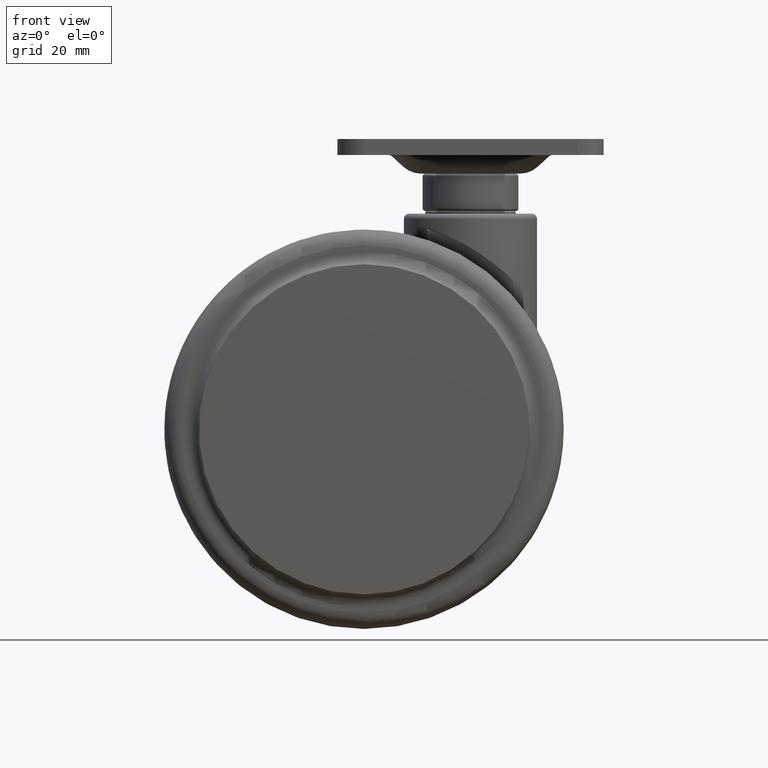
[diagram: clean part render]
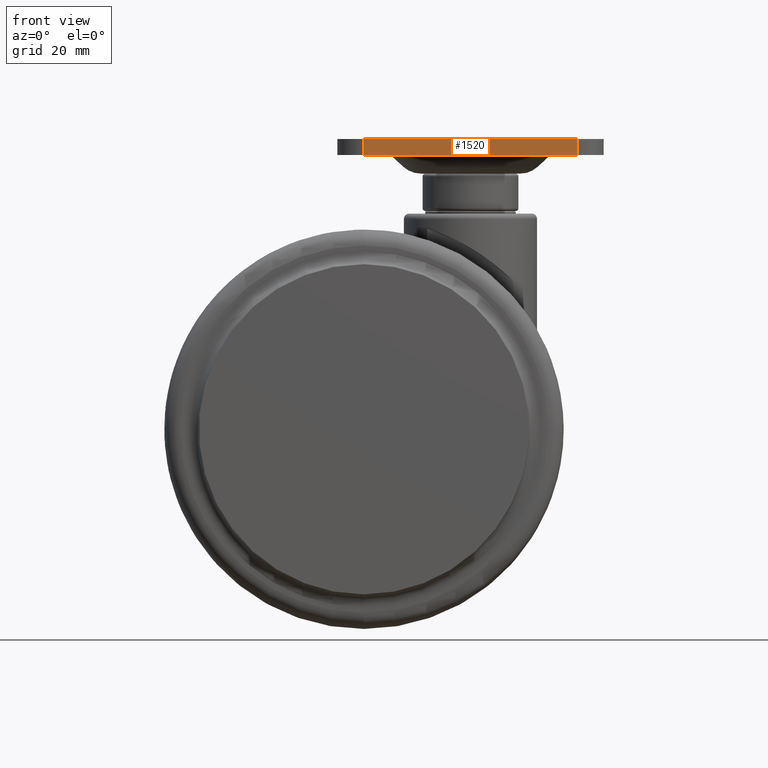
[diagram: same view with one face highlighted and labeled with its STEP entity id]
A machine part, front view. The second image highlights one B-rep face of the part: STEP entity #1520.
In plain terms, the highlighted planar face has unit normal (0, 1, 0).
Its self-contained STEP definition (entity closure, byte-faithful):
#48 = FACE_OUTER_BOUND ( 'NONE', #909, .T. ) ;
#183 = DIRECTION ( 'NONE',  ( 1.000000000000000000, -0.0000000000000000000, -0.0000000000000000000 ) ) ;
#212 = ORIENTED_EDGE ( 'NONE', *, *, #1273, .F. ) ;
#433 = CARTESIAN_POINT ( 'NONE',  ( -19.99999999999849700, -30.00000000000000000, 14.00000000000000000 ) ) ;
#484 = CARTESIAN_POINT ( 'NONE',  ( -20.00000000000000000, -30.00000000000000000, 1010.999999999999900 ) ) ;
#494 = CARTESIAN_POINT ( 'NONE',  ( 20.00000000000000000, -30.00000000000000000, 11.00000000000011900 ) ) ;
#909 = EDGE_LOOP ( 'NONE', ( #4176, #212, #2466, #2304 ) ) ;
#924 = LINE ( 'NONE', #1469, #2597 ) ;
#959 = EDGE_CURVE ( 'NONE', #1671, #1396, #1289, .T. ) ;
#1022 = DIRECTION ( 'NONE',  ( 1.000000000000000000, -0.0000000000000000000, -0.0000000000000000000 ) ) ;
#1273 = EDGE_CURVE ( 'NONE', #1396, #1315, #924, .T. ) ;
#1289 = LINE ( 'NONE', #2188, #3841 ) ;
#1315 = VERTEX_POINT ( 'NONE', #494 ) ;
#1396 = VERTEX_POINT ( 'NONE', #2398 ) ;
#1451 = VECTOR ( 'NONE', #2185, 1000.000000000000000 ) ;
#1469 = CARTESIAN_POINT ( 'NONE',  ( 20.00000000000000000, -30.00000000000000000, 1010.999999999999900 ) ) ;
#1488 = CARTESIAN_POINT ( 'NONE',  ( -19.99999999999849700, -30.00000000000000000, 11.00000000000011900 ) ) ;
#1490 = DIRECTION ( 'NONE',  ( 0.0000000000000000000, 1.000000000000000000, 0.0000000000000000000 ) ) ;
#1520 = ADVANCED_FACE ( 'NONE', ( #48 ), #1812, .F. ) ;
#1571 = LINE ( 'NONE', #1850, #1451 ) ;
#1671 = VERTEX_POINT ( 'NONE', #433 ) ;
#1791 = EDGE_CURVE ( 'NONE', #4005, #1315, #2975, .T. ) ;
#1805 = DIRECTION ( 'NONE',  ( 0.0000000000000000000, 0.0000000000000000000, -1.000000000000000000 ) ) ;
#1812 = PLANE ( 'NONE',  #3471 ) ;
#1850 = CARTESIAN_POINT ( 'NONE',  ( -19.99999999999849700, -30.00000000000000000, 1010.999999999999900 ) ) ;
#2073 = VECTOR ( 'NONE', #1022, 1000.000000000000000 ) ;
#2185 = DIRECTION ( 'NONE',  ( 0.0000000000000000000, 0.0000000000000000000, -1.000000000000000000 ) ) ;
#2188 = CARTESIAN_POINT ( 'NONE',  ( -20.00000000000000000, -30.00000000000000000, 14.00000000000000000 ) ) ;
#2304 = ORIENTED_EDGE ( 'NONE', *, *, #3539, .T. ) ;
#2398 = CARTESIAN_POINT ( 'NONE',  ( 20.00000000000000000, -30.00000000000000000, 14.00000000000000000 ) ) ;
#2466 = ORIENTED_EDGE ( 'NONE', *, *, #959, .F. ) ;
#2597 = VECTOR ( 'NONE', #1805, 1000.000000000000000 ) ;
#2975 = LINE ( 'NONE', #3024, #2073 ) ;
#3024 = CARTESIAN_POINT ( 'NONE',  ( -20.00000000000000000, -30.00000000000000000, 11.00000000000011900 ) ) ;
#3471 = AXIS2_PLACEMENT_3D ( 'NONE', #484, #1490, #3829 ) ;
#3539 = EDGE_CURVE ( 'NONE', #1671, #4005, #1571, .T. ) ;
#3829 = DIRECTION ( 'NONE',  ( 0.0000000000000000000, 0.0000000000000000000, 1.000000000000000000 ) ) ;
#3841 = VECTOR ( 'NONE', #183, 1000.000000000000000 ) ;
#4005 = VERTEX_POINT ( 'NONE', #1488 ) ;
#4176 = ORIENTED_EDGE ( 'NONE', *, *, #1791, .T. ) ;